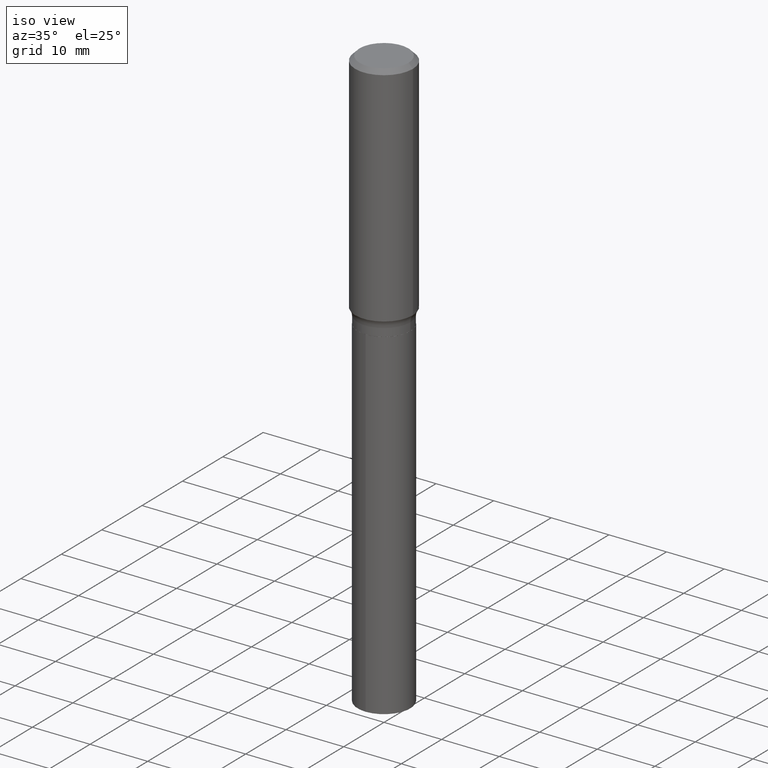
[diagram: clean part render]
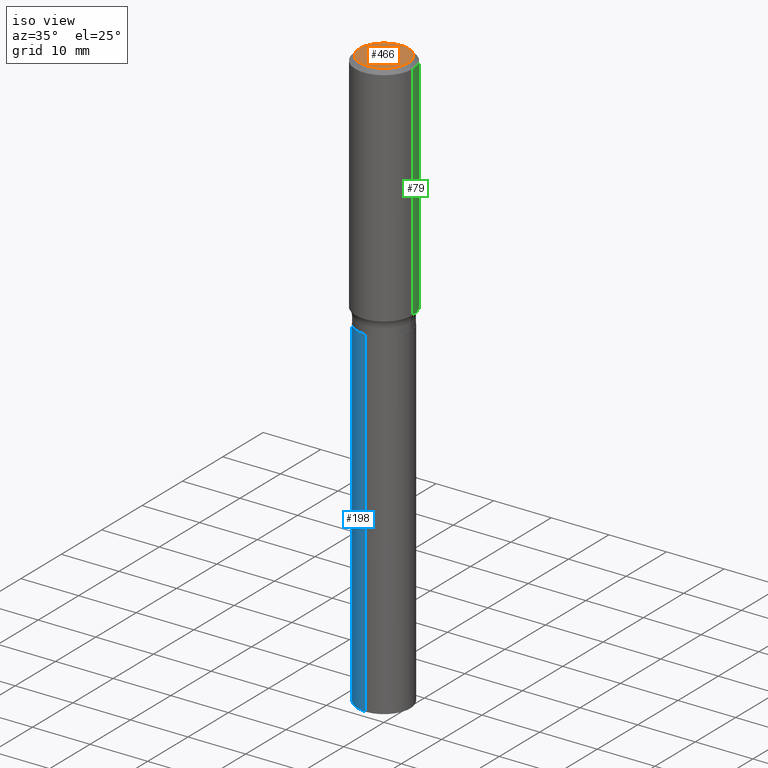
[diagram: same view with three faces highlighted in distinct colors, each labeled with its STEP entity id]
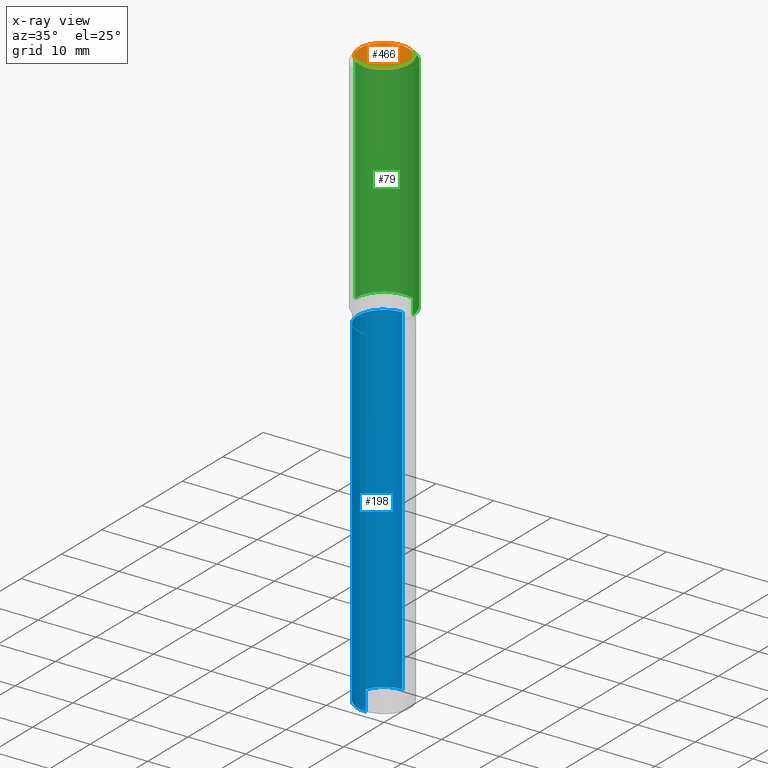
[diagram: x-ray of the same camera — body ghosted, the three highlighted faces saturated]
A machine part, iso view with three faces highlighted in distinct colors.
The next image is the same camera in x-ray (body ghosted, the three faces saturated) — at least one of them is partly hidden behind the body in this view.
Their STEP definitions:

[orange] entity #466 — the highlighted planar face has unit normal (0, -0, -1).
#18 = CARTESIAN_POINT ( 'NONE',  ( -1.001697619218021790E-46, 1.430158722866389718E-32, 4.096137381448108366E-18 ) ) ;
#20 = DIRECTION ( 'NONE',  ( 1.000000000000000000, -6.982962677686267499E-15, 4.876294436782262290E-29 ) ) ;
#25 = ORIENTED_EDGE ( 'NONE', *, *, #135, .T. ) ;
#49 = EDGE_LOOP ( 'NONE', ( #25, #372 ) ) ;
#60 = PLANE ( 'NONE',  #362 ) ;
#118 = CIRCLE ( 'NONE', #292, 0.1673224999999999851 ) ;
#135 = EDGE_CURVE ( 'NONE', #232, #310, #150, .T. ) ;
#145 = DIRECTION ( 'NONE',  ( 1.000000000000000000, -6.982962677686267499E-15, 4.876294436782262290E-29 ) ) ;
#150 = CIRCLE ( 'NONE', #202, 0.1673224999999999851 ) ;
#154 = CARTESIAN_POINT ( 'NONE',  ( 0.1673224999999999851, -1.300749711163072594E-15, 4.096137381456741925E-18 ) ) ;
#201 = DIRECTION ( 'NONE',  ( -1.000000000000000000, 6.982962677686265922E-15, -4.876176775795935793E-29 ) ) ;
#202 = AXIS2_PLACEMENT_3D ( 'NONE', #440, #485, #145 ) ;
#232 = VERTEX_POINT ( 'NONE', #299 ) ;
#276 = DIRECTION ( 'NONE',  ( 2.438088387897960049E-29, -3.491481338843145188E-15, -1.000000000000000000 ) ) ;
#292 = AXIS2_PLACEMENT_3D ( 'NONE', #18, #357, #20 ) ;
#299 = CARTESIAN_POINT ( 'NONE',  ( -0.1673224999999999851, 1.219954130253505460E-15, 4.096137381439757534E-18 ) ) ;
#310 = VERTEX_POINT ( 'NONE', #154 ) ;
#313 = CARTESIAN_POINT ( 'NONE',  ( -5.008488096090108951E-47, 7.150793614331948590E-33, 2.048068690724054183E-18 ) ) ;
#357 = DIRECTION ( 'NONE',  ( -2.445468806185136597E-29, 3.491481338843145583E-15, 1.000000000000000000 ) ) ;
#362 = AXIS2_PLACEMENT_3D ( 'NONE', #313, #276, #201 ) ;
#372 = ORIENTED_EDGE ( 'NONE', *, *, #487, .T. ) ;
#440 = CARTESIAN_POINT ( 'NONE',  ( -1.001697619218021790E-46, 1.430158722866389718E-32, 4.096137381448108366E-18 ) ) ;
#466 = ADVANCED_FACE ( 'NONE', ( #472 ), #60, .F. ) ;
#472 = FACE_OUTER_BOUND ( 'NONE', #49, .T. ) ;
#485 = DIRECTION ( 'NONE',  ( -2.445468806185136597E-29, 3.491481338843145583E-15, 1.000000000000000000 ) ) ;
#487 = EDGE_CURVE ( 'NONE', #310, #232, #118, .T. ) ;

[blue] entity #198 — the highlighted cylindrical surface (edge-blend (fillet) strip) has radius 4.5644 mm, axis along (-0, 0, 1).
#12 = EDGE_CURVE ( 'NONE', #119, #148, #323, .T. ) ;
#23 = CIRCLE ( 'NONE', #346, 0.1796999999999999986 ) ;
#50 = CARTESIAN_POINT ( 'NONE',  ( -1.254838393180181498E-15, -0.1797000000000057718, -1.653399999999999093 ) ) ;
#66 = AXIS2_PLACEMENT_3D ( 'NONE', #233, #80, #153 ) ;
#80 = DIRECTION ( 'NONE',  ( -2.445395198468639385E-29, 3.491586749282660968E-15, 1.000000000000000000 ) ) ;
#84 = ORIENTED_EDGE ( 'NONE', *, *, #361, .T. ) ;
#97 = DIRECTION ( 'NONE',  ( -2.445395198468639385E-29, 3.491586749282660968E-15, 1.000000000000000000 ) ) ;
#105 = EDGE_CURVE ( 'NONE', #119, #464, #23, .T. ) ;
#119 = VERTEX_POINT ( 'NONE', #479 ) ;
#121 = EDGE_CURVE ( 'NONE', #148, #378, #254, .T. ) ;
#127 = CARTESIAN_POINT ( 'NONE',  ( -1.254838393180181498E-15, -0.1797000000000057718, -1.653399999999999093 ) ) ;
#138 = DIRECTION ( 'NONE',  ( -6.982962677686265922E-15, -1.000000000000000000, 3.040454083098790380E-15 ) ) ;
#140 = CARTESIAN_POINT ( 'NONE',  ( 9.738654951238319122E-29, -1.390470851953747405E-14, -3.982396487217422898 ) ) ;
#148 = VERTEX_POINT ( 'NONE', #368 ) ;
#153 = DIRECTION ( 'NONE',  ( -6.982962677686265922E-15, -1.000000000000000000, 3.040454083098790380E-15 ) ) ;
#159 = CARTESIAN_POINT ( 'NONE',  ( -1.254838393180124503E-15, -0.1797000000000138487, -3.982396487217422010 ) ) ;
#166 = LINE ( 'NONE', #50, #317 ) ;
#184 = ORIENTED_EDGE ( 'NONE', *, *, #105, .T. ) ;
#198 = ADVANCED_FACE ( 'NONE', ( #383 ), #341, .T. ) ;
#220 = AXIS2_PLACEMENT_3D ( 'NONE', #291, #97, #138 ) ;
#233 = CARTESIAN_POINT ( 'NONE',  ( 4.043338124146503856E-29, -5.772815245643255193E-15, -1.653399999999999537 ) ) ;
#242 = DIRECTION ( 'NONE',  ( -2.445395198468639105E-29, 3.491586749282660968E-15, 1.000000000000000000 ) ) ;
#245 = CARTESIAN_POINT ( 'NONE',  ( 1.276845296160940256E-15, 0.1796999999999942255, -1.653400000000000203 ) ) ;
#254 = CIRCLE ( 'NONE', #220, 0.1796999999999999986 ) ;
#262 = ORIENTED_EDGE ( 'NONE', *, *, #12, .F. ) ;
#271 = EDGE_LOOP ( 'NONE', ( #262, #184, #84, #409 ) ) ;
#288 = DIRECTION ( 'NONE',  ( -2.445395198468639385E-29, 3.491586749282660968E-15, 1.000000000000000000 ) ) ;
#291 = CARTESIAN_POINT ( 'NONE',  ( 4.043338124146503856E-29, -5.772815245643255193E-15, -1.653399999999999537 ) ) ;
#317 = VECTOR ( 'NONE', #242, 39.37007874015748143 ) ;
#323 = LINE ( 'NONE', #245, #380 ) ;
#341 = CYLINDRICAL_SURFACE ( 'NONE', #66, 0.1796999999999999986 ) ;
#346 = AXIS2_PLACEMENT_3D ( 'NONE', #140, #288, #489 ) ;
#361 = EDGE_CURVE ( 'NONE', #464, #378, #166, .T. ) ;
#368 = CARTESIAN_POINT ( 'NONE',  ( 1.276845296160997646E-15, 0.1796999999999942255, -1.653400000000000203 ) ) ;
#378 = VERTEX_POINT ( 'NONE', #127 ) ;
#380 = VECTOR ( 'NONE', #394, 39.37007874015748143 ) ;
#383 = FACE_OUTER_BOUND ( 'NONE', #271, .T. ) ;
#394 = DIRECTION ( 'NONE',  ( -2.445395198468639105E-29, 3.491586749282660968E-15, 1.000000000000000000 ) ) ;
#409 = ORIENTED_EDGE ( 'NONE', *, *, #121, .F. ) ;
#464 = VERTEX_POINT ( 'NONE', #159 ) ;
#479 = CARTESIAN_POINT ( 'NONE',  ( 1.276845296160996857E-15, 0.1796999999999860931, -3.982396487217423342 ) ) ;
#489 = DIRECTION ( 'NONE',  ( -6.982962677686265922E-15, -1.000000000000000000, 3.040454083098790380E-15 ) ) ;

[green] entity #79 — the highlighted cylindrical surface (edge-blend (fillet) strip) has radius 5 mm, axis along (-0, 0, 1).
#11 = DIRECTION ( 'NONE',  ( -2.445468806185136877E-29, 3.491481338843145188E-15, 1.000000000000000000 ) ) ;
#16 = CARTESIAN_POINT ( 'NONE',  ( -0.1968500000000002470, -4.014145957537273181E-15, -1.550301664987419059 ) ) ;
#28 = EDGE_LOOP ( 'NONE', ( #234, #407, #32, #69 ) ) ;
#32 = ORIENTED_EDGE ( 'NONE', *, *, #473, .F. ) ;
#34 = CARTESIAN_POINT ( 'NONE',  ( -0.1968500000000001360, 1.398703375343758182E-15, -9.682923725166790684E-30 ) ) ;
#55 = DIRECTION ( 'NONE',  ( -2.445468806185136597E-29, 3.491481338843145583E-15, 1.000000000000000000 ) ) ;
#63 = DIRECTION ( 'NONE',  ( 1.000000000000000000, -6.982962677686269866E-15, 0.000000000000000000 ) ) ;
#68 = FACE_OUTER_BOUND ( 'NONE', #28, .T. ) ;
#69 = ORIENTED_EDGE ( 'NONE', *, *, #275, .F. ) ;
#79 = ADVANCED_FACE ( 'NONE', ( #68 ), #222, .T. ) ;
#81 = CIRCLE ( 'NONE', #88, 0.1968500000000002470 ) ;
#87 = CARTESIAN_POINT ( 'NONE',  ( 7.220858017463216492E-31, -1.030947152326917595E-16, -0.02952750000000022024 ) ) ;
#88 = AXIS2_PLACEMENT_3D ( 'NONE', #439, #217, #63 ) ;
#101 = AXIS2_PLACEMENT_3D ( 'NONE', #87, #55, #246 ) ;
#103 = VERTEX_POINT ( 'NONE', #326 ) ;
#114 = EDGE_CURVE ( 'NONE', #190, #426, #81, .T. ) ;
#133 = VERTEX_POINT ( 'NONE', #400 ) ;
#170 = CARTESIAN_POINT ( 'NONE',  ( 0.000000000000000000, 0.000000000000000000, 0.000000000000000000 ) ) ;
#178 = DIRECTION ( 'NONE',  ( -2.445468806185136877E-29, 3.491481338843145188E-15, 1.000000000000000000 ) ) ;
#190 = VERTEX_POINT ( 'NONE', #423 ) ;
#203 = CIRCLE ( 'NONE', #101, 0.1968500000000000527 ) ;
#217 = DIRECTION ( 'NONE',  ( -2.445468806185136597E-29, 3.491481338843145583E-15, 1.000000000000000000 ) ) ;
#222 = CYLINDRICAL_SURFACE ( 'NONE', #421, 0.1968500000000001360 ) ;
#234 = ORIENTED_EDGE ( 'NONE', *, *, #114, .T. ) ;
#246 = DIRECTION ( 'NONE',  ( 1.000000000000000000, -6.982962677686266711E-15, 0.000000000000000000 ) ) ;
#248 = EDGE_CURVE ( 'NONE', #426, #103, #307, .T. ) ;
#274 = LINE ( 'NONE', #311, #301 ) ;
#275 = EDGE_CURVE ( 'NONE', #190, #133, #274, .T. ) ;
#293 = DIRECTION ( 'NONE',  ( -2.445468806185136597E-29, 3.491481338843145583E-15, 1.000000000000000000 ) ) ;
#301 = VECTOR ( 'NONE', #11, 39.37007874015748143 ) ;
#307 = LINE ( 'NONE', #34, #435 ) ;
#311 = CARTESIAN_POINT ( 'NONE',  ( 0.1968500000000001360, -1.374596203102542594E-15, 9.598753983154306463E-30 ) ) ;
#326 = CARTESIAN_POINT ( 'NONE',  ( -0.1968500000000000527, -1.359268648713103540E-15, -0.02952750000000022024 ) ) ;
#400 = CARTESIAN_POINT ( 'NONE',  ( 0.1968500000000000527, -1.477690918335233688E-15, -0.02952750000000022024 ) ) ;
#407 = ORIENTED_EDGE ( 'NONE', *, *, #248, .T. ) ;
#408 = DIRECTION ( 'NONE',  ( 1.000000000000000000, -6.982962677686266711E-15, 4.876176775795935793E-29 ) ) ;
#421 = AXIS2_PLACEMENT_3D ( 'NONE', #170, #293, #408 ) ;
#423 = CARTESIAN_POINT ( 'NONE',  ( 0.1968500000000002470, -6.787445535983575733E-15, -1.550301664987419059 ) ) ;
#426 = VERTEX_POINT ( 'NONE', #16 ) ;
#435 = VECTOR ( 'NONE', #178, 39.37007874015748143 ) ;
#439 = CARTESIAN_POINT ( 'NONE',  ( 3.791214361903613546E-29, -5.412849332881032547E-15, -1.550301664987419059 ) ) ;
#473 = EDGE_CURVE ( 'NONE', #133, #103, #203, .T. ) ;